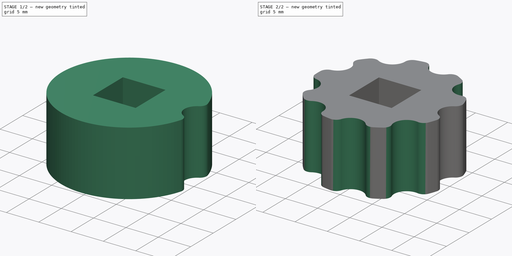
[diagram: build sequence overview — one tinted view per stage of 2, left to right]
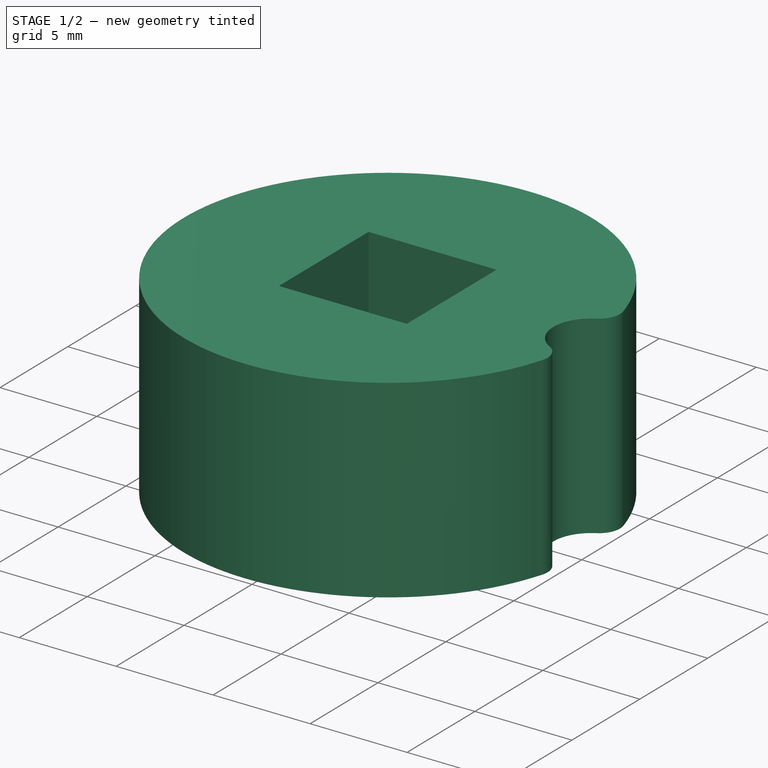
[diagram: stage 1 of 2 — iso view after this stage's code; geometry added in this stage tinted green]
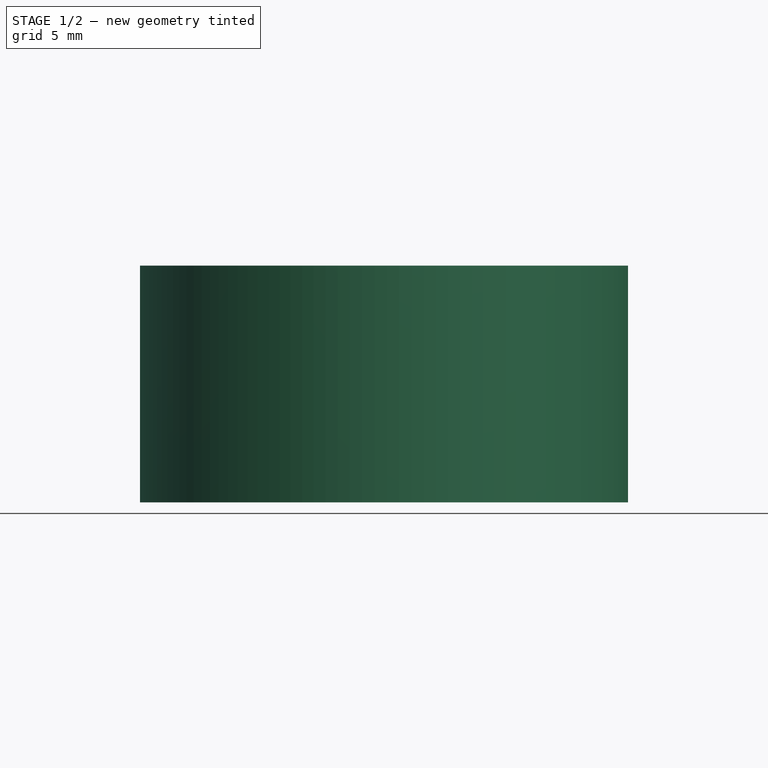
[diagram: stage 1 of 2 — front view after this stage's code; geometry added in this stage tinted green]
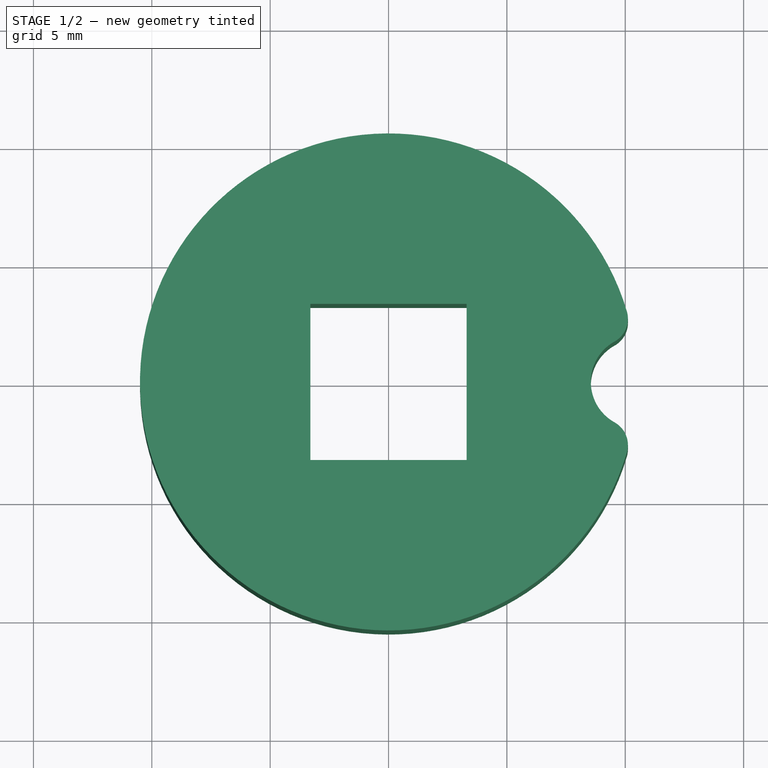
[diagram: stage 1 of 2 — top view after this stage's code; geometry added in this stage tinted green]
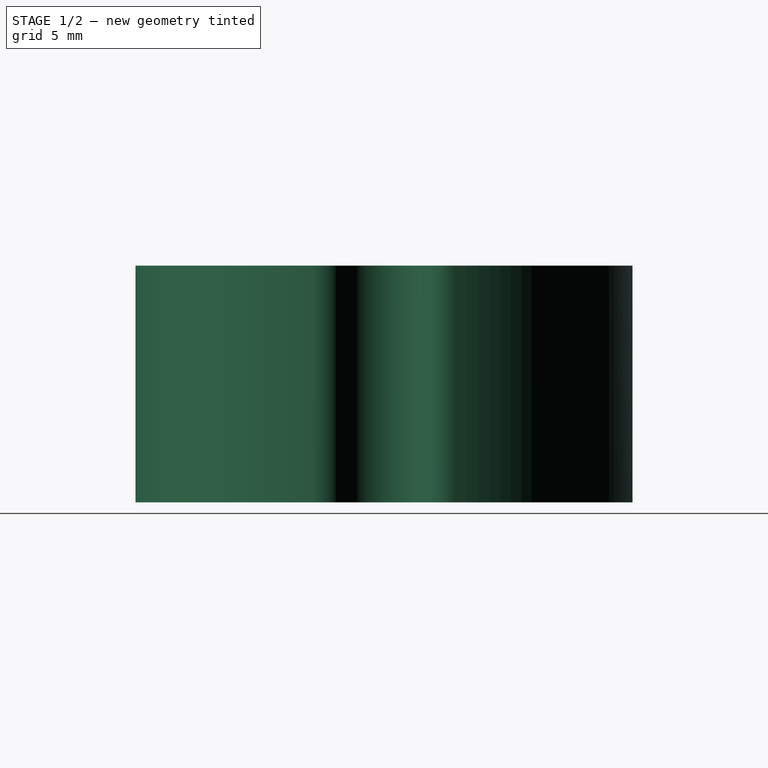
[diagram: stage 1 of 2 — right view after this stage's code; geometry added in this stage tinted green]
FCSTD DOCUMENT  (FreeCAD 0.20R27319 (Git))
Label: StopKnob
License: All rights reserved
LicenseURL: http://en.wikipedia.org/wiki/All_rights_reserved
objects: Sketcher::SketchObject×2, PartDesign::Pad×1, PartDesign::Pocket×1, PartDesign::PolarPattern×1, PartDesign::Body×1
note: 8 computed .brp shape members not serialized (recipe doc carries the construction recipe); baked Part::Feature solids carry a one-line shape summary decoded from their .brp
EXTERNAL_REF file=SharedDimensions.FCStd obj=Spreadsheet

FEATURE [Sketcher::SketchObject] Sketch
  FullyConstrained = true
  MapMode = 5
  Support = -> [XY_Plane002]
  expr: Constraints[0] = SharedDimensions#Spreadsheet.HoleDiameter + 1
  expr: Constraints[12] = SharedDimensions#Spreadsheet.BoltSquareDiameter + SharedDimensions#Spreadsheet.BoltClearance
  sketch-geometry (6):
    g0: Circle CenterX=0 CenterY=0 CenterZ=0 NormalX=0 NormalY=0 NormalZ=1 AngleXU=0 Radius=10.5
    g1: LineSegment StartX=-3.3 StartY=3.3 StartZ=0 EndX=-3.3 EndY=-3.3 EndZ=0
    g2: LineSegment StartX=-3.3 StartY=-3.3 StartZ=0 EndX=3.3 EndY=-3.3 EndZ=0
    g3: LineSegment StartX=3.3 StartY=-3.3 StartZ=0 EndX=3.3 EndY=3.3 EndZ=0
    g4: LineSegment StartX=3.3 StartY=3.3 StartZ=0 EndX=-3.3 EndY=3.3 EndZ=0
    g5: GeomPoint X=0 Y=0 Z=0
  constraints (14):
    c: Diameter(g0) = 21
    c: Coincident(g1,g2)
    c: Coincident(g2,g3)
    c: Coincident(g3,g4)
    c: Coincident(g4,g1)
    c: Horizontal(g2)
    c: Horizontal(g4)
    c: Vertical(g1)
    c: Vertical(g3)
    c: Symmetric(g2,g1,g5)
    c: Coincident(g5,g0)
    c: Equal(g4,g3)
    c: Distance(g4) = 6.6
    c: Coincident(g0,g-1)
FEATURE [PartDesign::Pad] Pad
  Direction = (0,0,1)
  Length = 10
  Length2 = 10
  Profile = -> Sketch
  ReferenceAxis = -> Sketch [N_Axis]
  Type = 0
FEATURE [Sketcher::SketchObject] Sketch002
  ExternalGeometry = -> [Sketch]
  FullyConstrained = false
  MapMode = 5
  Placement = pos=(0,0,10) rot=(0,0,1;0rad)
  sketch-geometry (7):
    g0: LineSegment StartX=-0.0019297 StartY=5.58007e-08 StartZ=0 EndX=10.0675 EndY=2.98269 EndZ=0
    g1: LineSegment StartX=-0.0019297 StartY=5.58007e-08 StartZ=0 EndX=10.0675 EndY=-2.98269 EndZ=0
    g2: ArcOfCircle CenterX=10.5 CenterY=-5.54292e-07 CenterZ=0 NormalX=0 NormalY=0 NormalZ=1 AngleXU=0 Radius=3.01389 StartAngle=4.56837 EndAngle=7.998
    g3: ArcOfCircle CenterX=9.01148 CenterY=2.66983 CenterZ=0 NormalX=0 NormalY=0 NormalZ=1 AngleXU=0 Radius=1.10134 StartAngle=5.221 EndAngle=6.57122
    g4: ArcOfCircle CenterX=10.5 CenterY=1.2e-15 CenterZ=0 NormalX=0 NormalY=0 NormalZ=1 AngleXU=0 Radius=1.95541 StartAngle=2.0794 EndAngle=3.14159
    g5: ArcOfCircle CenterX=10.5 CenterY=1.2e-15 CenterZ=0 NormalX=0 NormalY=0 NormalZ=1 AngleXU=0 Radius=1.95541 StartAngle=3.14159 EndAngle=4.20378
    g6: ArcOfCircle CenterX=9.01148 CenterY=-2.66983 CenterZ=0 NormalX=0 NormalY=0 NormalZ=1 AngleXU=0 Radius=1.10134 StartAngle=5.99515 EndAngle=7.34537
  constraints (17):
    c: Coincident(g1,g0)
    c: Tangent(g6,g5) = 1.5708
    c: Tangent(g4,g3) = 1.5708
    c: Symmetric(g3,g5,g-1)
    c: Tangent(g4,g5) = -1.5708
    c: Coincident(g3,g2)
    c: Coincident(g0,g2)
    c: Coincident(g2,g6)
    c: Coincident(g1,g2)
    c: PointOnObject(g2,g-3)
    c: PointOnObject(g2,g-3)
    c: Symmetric(g6,g3,g-1)
    c: Tangent(g3,g-3)
    c: PointOnObject(g4,g-3)
    c: PointOnObject(g2,g-3)
    c: PointOnObject(g4,g-1)
    c: Angle(g1,g0) = 0.575959
FEATURE [PartDesign::Pocket] Pocket001
  BaseFeature = -> Pad
  Direction = (0,0,-1)
  Length = 5
  Length2 = 5
  Profile = -> Sketch002
  ReferenceAxis = -> Sketch002 [N_Axis]
  Type = 1
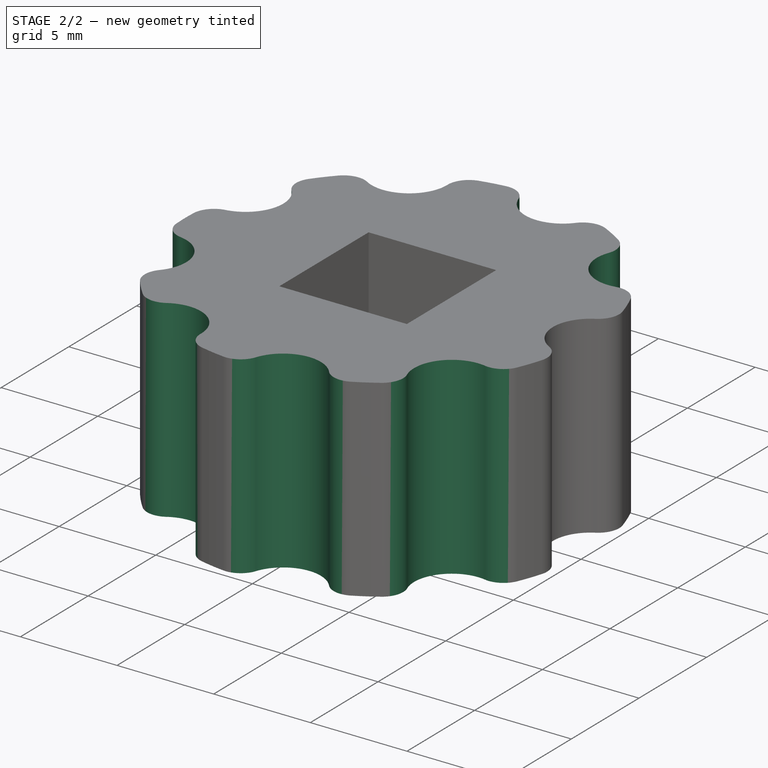
[diagram: stage 2 of 2 — iso view after this stage's code; geometry added in this stage tinted green]
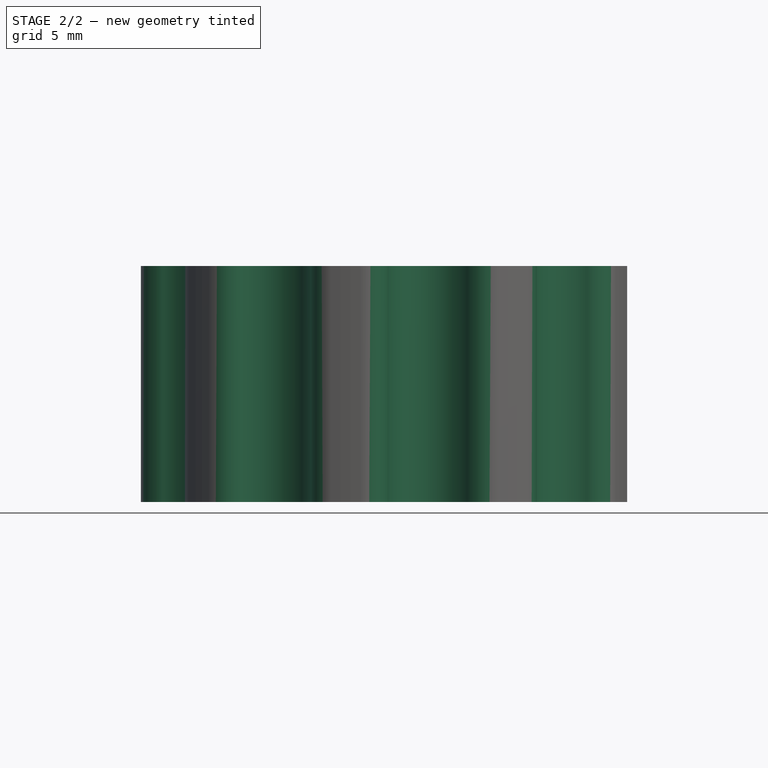
[diagram: stage 2 of 2 — front view after this stage's code; geometry added in this stage tinted green]
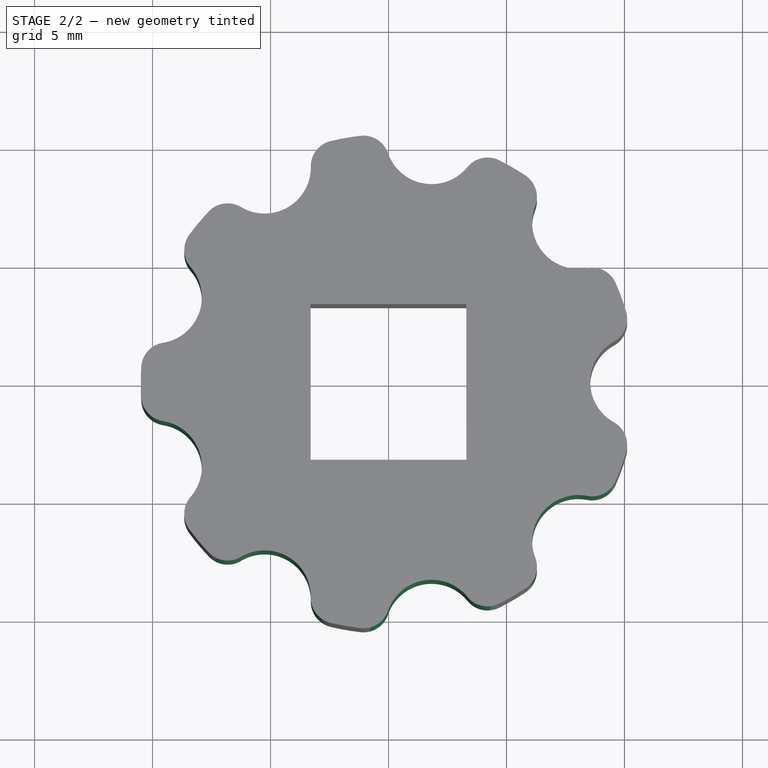
[diagram: stage 2 of 2 — top view after this stage's code; geometry added in this stage tinted green]
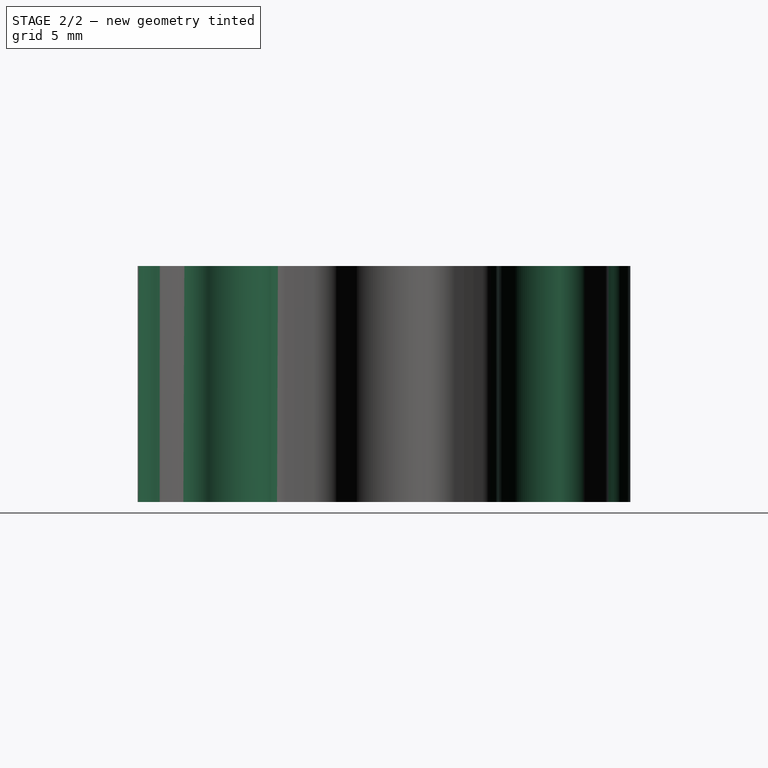
[diagram: stage 2 of 2 — right view after this stage's code; geometry added in this stage tinted green]
FEATURE [PartDesign::PolarPattern] PolarPattern
  Angle = 360
  Axis = -> Sketch002 [N_Axis]
  BaseFeature = -> Pocket001
  Occurrences = 9
  Originals = -> [Pocket001]
  Overlap = 0
FEATURE [PartDesign::Body] Body002  label="Body"
  Group = -> [Sketch,Pad,Sketch002,Pocket001,PolarPattern]
  Origin = -> Origin002
  Tip = -> PolarPattern
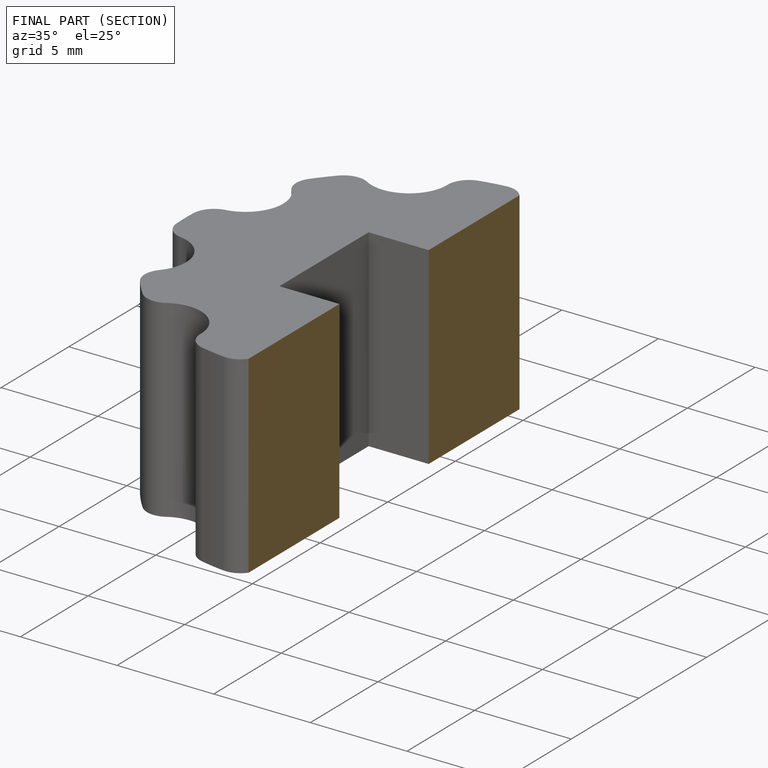
[diagram: finished part — half-section view (interior)]
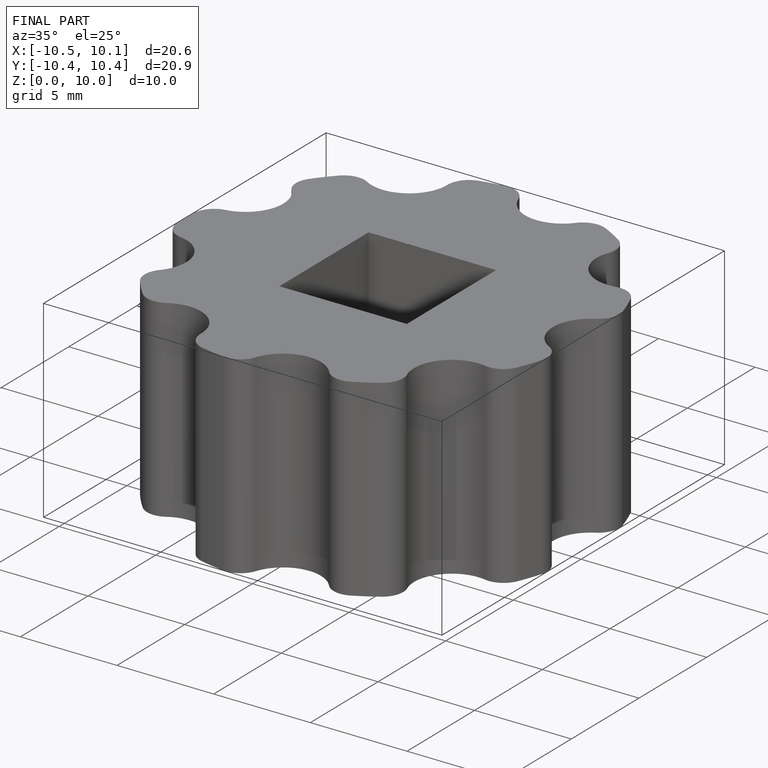
[diagram: finished part — iso view with bounding-box wireframe]
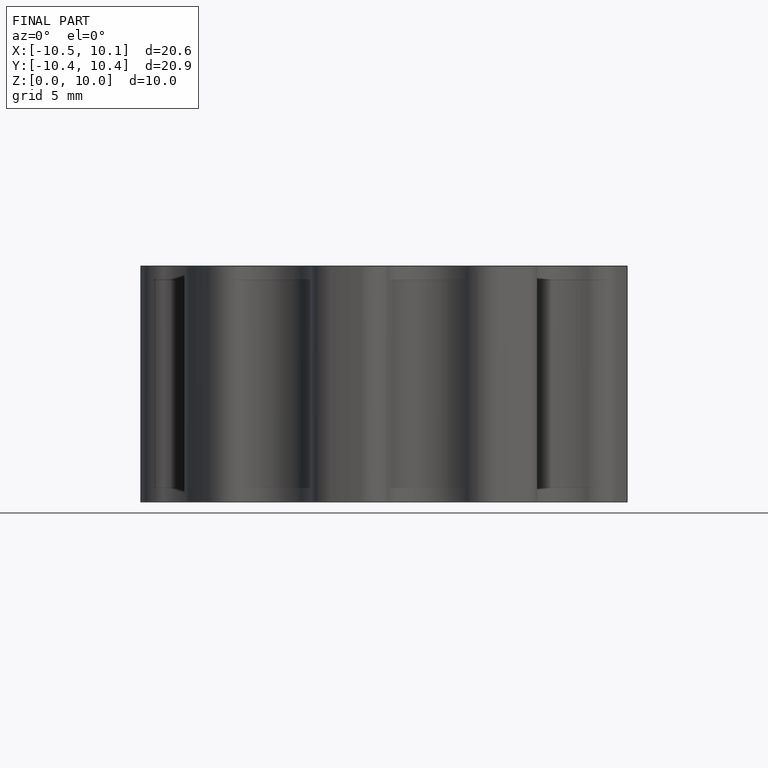
[diagram: finished part — front view with bounding-box wireframe]
